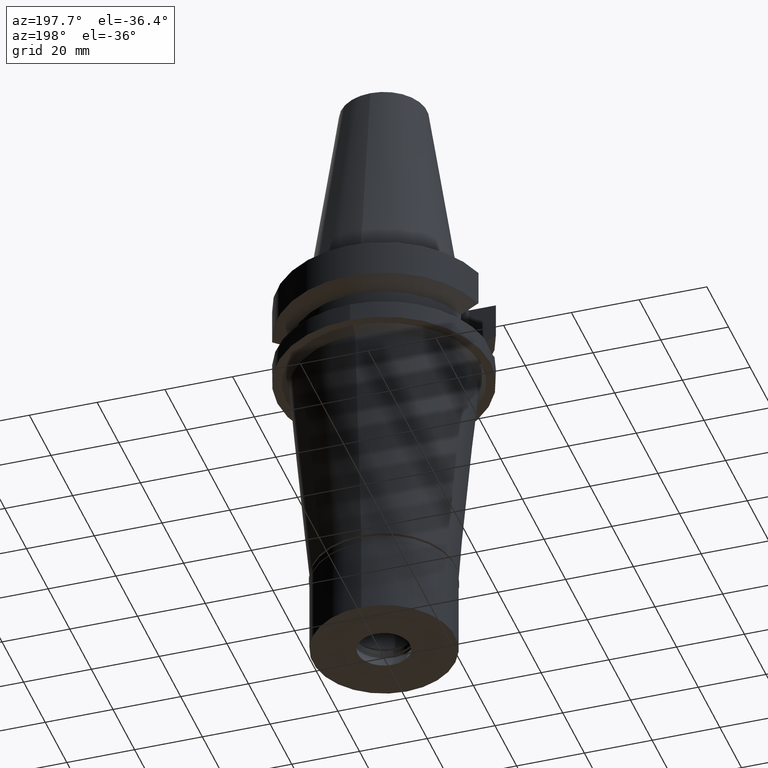
[diagram: clean part render]
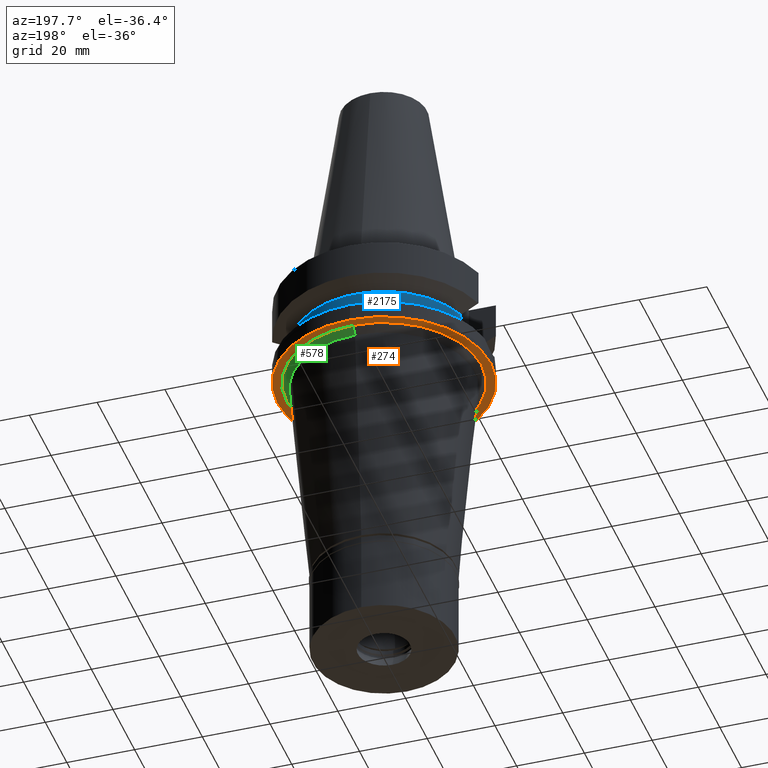
[diagram: same view with three faces highlighted in distinct colors, each labeled with its STEP entity id]
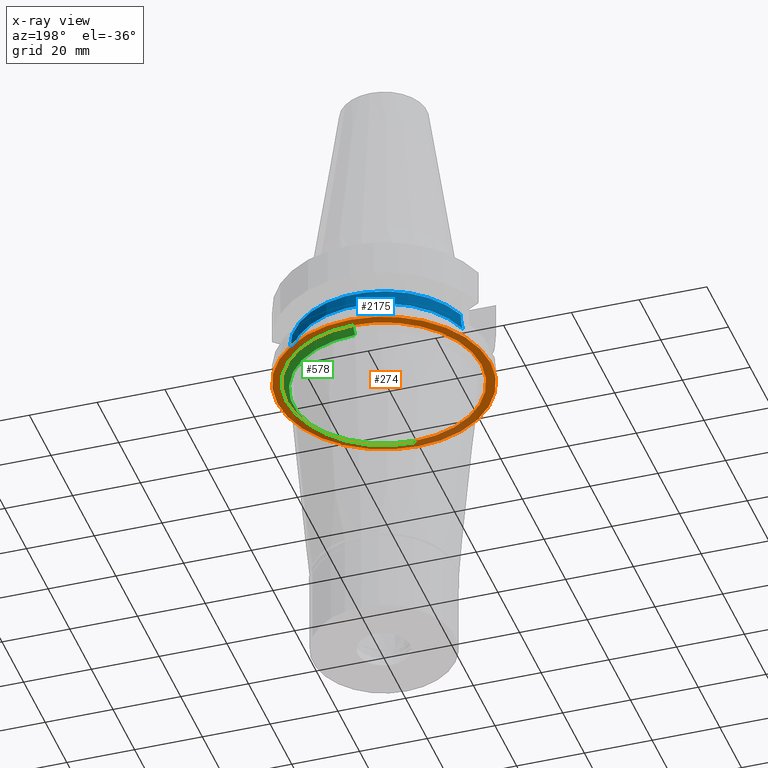
[diagram: x-ray of the same camera — body ghosted, the three highlighted faces saturated]
A machine part, auxiliary view with three faces highlighted in distinct colors.
The next image is the same camera in x-ray (body ghosted, the three faces saturated) — at least one of them is partly hidden behind the body in this view.
Their STEP definitions:

[orange] entity #274 — the highlighted planar face has unit normal (0, 0, -1).
#17 = CIRCLE ( 'NONE', #2186, 31.50000000000000000 ) ;
#31 = DIRECTION ( 'NONE',  ( 0.0000000000000000000, 1.000000000000000000, 0.0000000000000000000 ) ) ;
#36 = VERTEX_POINT ( 'NONE', #292 ) ;
#206 = DIRECTION ( 'NONE',  ( 0.0000000000000000000, -1.000000000000000000, 0.0000000000000000000 ) ) ;
#274 = ADVANCED_FACE ( 'NONE', ( #1879, #2535 ), #355, .T. ) ;
#292 = CARTESIAN_POINT ( 'NONE',  ( 0.0000000000000000000, 28.76550292635999995, -27.00000000000000000 ) ) ;
#307 = VERTEX_POINT ( 'NONE', #2645 ) ;
#332 = DIRECTION ( 'NONE',  ( 0.0000000000000000000, 0.0000000000000000000, 1.000000000000000000 ) ) ;
#355 = PLANE ( 'NONE',  #1384 ) ;
#357 = DIRECTION ( 'NONE',  ( 0.0000000000000000000, 0.0000000000000000000, 1.000000000000000000 ) ) ;
#463 = VERTEX_POINT ( 'NONE', #2447 ) ;
#628 = AXIS2_PLACEMENT_3D ( 'NONE', #1550, #357, #2787 ) ;
#720 = CARTESIAN_POINT ( 'NONE',  ( 0.0000000000000000000, 0.0000000000000000000, -27.00000000000000000 ) ) ;
#756 = DIRECTION ( 'NONE',  ( 0.0000000000000000000, 0.0000000000000000000, -1.000000000000000000 ) ) ;
#827 = AXIS2_PLACEMENT_3D ( 'NONE', #2198, #756, #31 ) ;
#860 = DIRECTION ( 'NONE',  ( 0.0000000000000000000, 0.0000000000000000000, -1.000000000000000000 ) ) ;
#1064 = VERTEX_POINT ( 'NONE', #1433 ) ;
#1136 = EDGE_CURVE ( 'NONE', #463, #307, #2239, .T. ) ;
#1299 = CARTESIAN_POINT ( 'NONE',  ( 0.0000000000000000000, 0.0000000000000000000, -27.00000000000000000 ) ) ;
#1384 = AXIS2_PLACEMENT_3D ( 'NONE', #1299, #860, #1581 ) ;
#1433 = CARTESIAN_POINT ( 'NONE',  ( 0.0000000000000000000, -28.76550292635999995, -27.00000000000000000 ) ) ;
#1535 = ORIENTED_EDGE ( 'NONE', *, *, #1136, .F. ) ;
#1550 = CARTESIAN_POINT ( 'NONE',  ( 0.0000000000000000000, 2.134498138573999781E-14, -27.00000000000000000 ) ) ;
#1581 = DIRECTION ( 'NONE',  ( 0.0000000000000000000, -1.000000000000000000, 0.0000000000000000000 ) ) ;
#1643 = AXIS2_PLACEMENT_3D ( 'NONE', #720, #2167, #206 ) ;
#1726 = DIRECTION ( 'NONE',  ( 0.0000000000000000000, -1.000000000000000000, 0.0000000000000000000 ) ) ;
#1879 = FACE_OUTER_BOUND ( 'NONE', #2129, .T. ) ;
#2108 = EDGE_CURVE ( 'NONE', #307, #463, #17, .T. ) ;
#2129 = EDGE_LOOP ( 'NONE', ( #1535, #2250 ) ) ;
#2167 = DIRECTION ( 'NONE',  ( 0.0000000000000000000, 0.0000000000000000000, -1.000000000000000000 ) ) ;
#2186 = AXIS2_PLACEMENT_3D ( 'NONE', #2205, #332, #1726 ) ;
#2198 = CARTESIAN_POINT ( 'NONE',  ( 0.0000000000000000000, 0.0000000000000000000, -27.00000000000000000 ) ) ;
#2202 = ORIENTED_EDGE ( 'NONE', *, *, #3072, .F. ) ;
#2205 = CARTESIAN_POINT ( 'NONE',  ( 0.0000000000000000000, 2.134498138573999781E-14, -27.00000000000000000 ) ) ;
#2239 = CIRCLE ( 'NONE', #628, 31.50000000000000000 ) ;
#2250 = ORIENTED_EDGE ( 'NONE', *, *, #2108, .F. ) ;
#2252 = CIRCLE ( 'NONE', #827, 28.76550292635999995 ) ;
#2447 = CARTESIAN_POINT ( 'NONE',  ( 0.0000000000000000000, 31.50000000000000000, -27.00000000000000000 ) ) ;
#2523 = EDGE_CURVE ( 'NONE', #1064, #36, #3012, .T. ) ;
#2535 = FACE_BOUND ( 'NONE', #2553, .T. ) ;
#2553 = EDGE_LOOP ( 'NONE', ( #2202, #3038 ) ) ;
#2645 = CARTESIAN_POINT ( 'NONE',  ( 0.0000000000000000000, -31.50000000000000000, -27.00000000000000000 ) ) ;
#2787 = DIRECTION ( 'NONE',  ( 0.0000000000000000000, 1.000000000000000000, 0.0000000000000000000 ) ) ;
#3012 = CIRCLE ( 'NONE', #1643, 28.76550292635999995 ) ;
#3038 = ORIENTED_EDGE ( 'NONE', *, *, #2523, .F. ) ;
#3072 = EDGE_CURVE ( 'NONE', #36, #1064, #2252, .T. ) ;

[blue] entity #2175 — the highlighted cylindrical surface (partial cylindrical patch) has radius 26.5 mm, axis along (0, 0, -1).
#35 = EDGE_CURVE ( 'NONE', #1943, #1637, #699, .T. ) ;
#119 = VECTOR ( 'NONE', #2001, 999.9999999999998863 ) ;
#141 = CARTESIAN_POINT ( 'NONE',  ( 25.53175183775000079, 7.097862220092999941, -18.74774300138999905 ) ) ;
#170 = CARTESIAN_POINT ( 'NONE',  ( -25.31202500689251522, 7.845732311882787968, -16.75278555880698406 ) ) ;
#279 = DIRECTION ( 'NONE',  ( -1.016055629568006087E-06, -3.186721160962021074E-06, -0.9999999999944062523 ) ) ;
#653 = CARTESIAN_POINT ( 'NONE',  ( 25.35411236305800031, 7.708864339760763684, -17.26996869602688278 ) ) ;
#667 = CARTESIAN_POINT ( 'NONE',  ( -25.53175183775000079, 7.097862220092999941, -18.74774300138999905 ) ) ;
#677 = ORIENTED_EDGE ( 'NONE', *, *, #898, .F. ) ;
#699 = CIRCLE ( 'NONE', #1588, 26.50000000000000711 ) ;
#709 = ORIENTED_EDGE ( 'NONE', *, *, #2925, .F. ) ;
#774 = CARTESIAN_POINT ( 'NONE',  ( 0.0000000000000000000, 1.065333950388000029E-14, -14.45225699861000024 ) ) ;
#810 = CARTESIAN_POINT ( 'NONE',  ( -25.28048322354058541, 7.947042364867001218, -16.24399973113296980 ) ) ;
#864 = CARTESIAN_POINT ( 'NONE',  ( 25.32418608982703390, 7.806352243999687524, -16.91565584311630488 ) ) ;
#878 = VECTOR ( 'NONE', #279, 1000.000000000000000 ) ;
#889 = CARTESIAN_POINT ( 'NONE',  ( -25.32118071774171497, 7.816100027253767735, -16.87651110713343527 ) ) ;
#890 = CARTESIAN_POINT ( 'NONE',  ( 25.44392127699064332, 7.408263445652504053, -18.11704143288375946 ) ) ;
#898 = EDGE_CURVE ( 'NONE', #2114, #1061, #1245, .T. ) ;
#907 = EDGE_CURVE ( 'NONE', #2114, #2952, #2399, .T. ) ;
#916 = AXIS2_PLACEMENT_3D ( 'NONE', #1044, #2036, #1280 ) ;
#921 = CARTESIAN_POINT ( 'NONE',  ( 25.37572268659466701, 7.637742846882907166, -17.49808964567741043 ) ) ;
#926 = VERTEX_POINT ( 'NONE', #1984 ) ;
#958 = CARTESIAN_POINT ( 'NONE',  ( 25.24772413115000091, 8.049995415974001034, -14.45229202654999945 ) ) ;
#1044 = CARTESIAN_POINT ( 'NONE',  ( 0.0000000000000000000, 2.134498138573999781E-14, 74.29500000000000171 ) ) ;
#1051 = LINE ( 'NONE', #1250, #119 ) ;
#1061 = VERTEX_POINT ( 'NONE', #2943 ) ;
#1122 = CARTESIAN_POINT ( 'NONE',  ( -25.31648570732018655, 7.831303109281309460, -16.81376729955617577 ) ) ;
#1123 = CARTESIAN_POINT ( 'NONE',  ( 25.32549585278727022, 7.802104298501142843, -16.93243209947438643 ) ) ;
#1172 = EDGE_CURVE ( 'NONE', #1061, #1637, #1051, .T. ) ;
#1245 = B_SPLINE_CURVE_WITH_KNOTS ( 'NONE', 3,
 ( #141, #1380, #890, #2095, #921, #653, #2578, #1867, #2836, #1123, #864, #1589, #1338, #3102 ),
 .UNSPECIFIED., .F., .F.,
 ( 4, 2, 2, 1, 1, 2, 2, 4 ),
 ( 0.0000000000000000000, 0.2499999999999975575, 0.3749999999999975575, 0.4374999999999975575, 0.4687499999999987788, 0.4843749999999993339, 0.4999999999999998890, 1.000000000000000000 ),
 .UNSPECIFIED. ) ;
#1250 = CARTESIAN_POINT ( 'NONE',  ( 25.24772266958000344, 8.050000000000000711, -14.94999999999999929 ) ) ;
#1280 = DIRECTION ( 'NONE',  ( 0.0000000000000000000, -1.000000000000000000, 0.0000000000000000000 ) ) ;
#1338 = CARTESIAN_POINT ( 'NONE',  ( 25.24772266957999989, 8.050000000000000711, -15.58995880478328999 ) ) ;
#1380 = CARTESIAN_POINT ( 'NONE',  ( 25.48481625423749364, 7.266694416798063827, -18.43220093598307230 ) ) ;
#1425 = AXIS2_PLACEMENT_3D ( 'NONE', #2112, #2608, #2365 ) ;
#1427 = B_SPLINE_CURVE_WITH_KNOTS ( 'NONE', 3,
 ( #2776, #2031, #2991, #1553, #810, #1781, #2301, #170, #1122, #3087, #889, #2833, #2361, #667 ),
 .UNSPECIFIED., .F., .F.,
 ( 4, 2, 2, 1, 1, 2, 2, 4 ),
 ( 0.0000000000000000000, 0.2500000000000326406, 0.3750000000000489608, 0.4375000000000558997, 0.4687500000000580647, 0.4843750000000578426, 0.5000000000000576206, 1.000000000000000000 ),
 .UNSPECIFIED. ) ;
#1461 = LINE ( 'NONE', #1739, #878 ) ;
#1494 = DIRECTION ( 'NONE',  ( -0.9527442516822307583, 0.3037735849057093818, 0.0000000000000000000 ) ) ;
#1553 = CARTESIAN_POINT ( 'NONE',  ( -25.27268309164520232, 7.971812745166494629, -16.08115051879740420 ) ) ;
#1588 = AXIS2_PLACEMENT_3D ( 'NONE', #774, #1744, #1494 ) ;
#1589 = CARTESIAN_POINT ( 'NONE',  ( 25.27269031700759783, 7.973298021050312379, -16.24529443263009654 ) ) ;
#1637 = VERTEX_POINT ( 'NONE', #958 ) ;
#1739 = CARTESIAN_POINT ( 'NONE',  ( -25.24772216383000156, 8.050001586207001125, -14.45224487859000106 ) ) ;
#1744 = DIRECTION ( 'NONE',  ( 0.0000000000000000000, 0.0000000000000000000, -1.000000000000000000 ) ) ;
#1771 = FACE_OUTER_BOUND ( 'NONE', #2288, .T. ) ;
#1781 = CARTESIAN_POINT ( 'NONE',  ( -25.29452346095227000, 7.902092865024707535, -16.48827265652634111 ) ) ;
#1867 = CARTESIAN_POINT ( 'NONE',  ( 25.33291921433979610, 7.778007550393247094, -17.02550036343772888 ) ) ;
#1943 = VERTEX_POINT ( 'NONE', #2433 ) ;
#1984 = CARTESIAN_POINT ( 'NONE',  ( -25.24772266958000344, 8.050000000000000711, -14.94999999999999929 ) ) ;
#2001 = DIRECTION ( 'NONE',  ( 2.936606992844924183E-06, -9.210271512824759089E-06, 0.9999999999532737105 ) ) ;
#2031 = CARTESIAN_POINT ( 'NONE',  ( -25.24772266957999989, 8.050000000000016698, -15.26991016303403903 ) ) ;
#2036 = DIRECTION ( 'NONE',  ( 0.0000000000000000000, 0.0000000000000000000, -1.000000000000000000 ) ) ;
#2095 = CARTESIAN_POINT ( 'NONE',  ( 25.39163972051884244, 7.584838823501475424, -17.65189279967824376 ) ) ;
#2112 = CARTESIAN_POINT ( 'NONE',  ( 0.0000000000000000000, 0.0000000000000000000, -18.74774300138999905 ) ) ;
#2114 = VERTEX_POINT ( 'NONE', #2718 ) ;
#2123 = CARTESIAN_POINT ( 'NONE',  ( -25.53175183775000079, 7.097862220092999941, -18.74774300138999905 ) ) ;
#2175 = ADVANCED_FACE ( 'NONE', ( #1771 ), #2749, .T. ) ;
#2288 = EDGE_LOOP ( 'NONE', ( #3036, #2633, #677, #3074, #709, #2856 ) ) ;
#2301 = CARTESIAN_POINT ( 'NONE',  ( -25.30212858955025723, 7.877670097774115199, -16.61040846292341655 ) ) ;
#2361 = CARTESIAN_POINT ( 'NONE',  ( -25.43786288018555197, 7.435590607957213827, -18.11653926695827721 ) ) ;
#2365 = DIRECTION ( 'NONE',  ( 0.9634623335000935818, 0.2678438573619981722, 0.0000000000000000000 ) ) ;
#2399 = CIRCLE ( 'NONE', #1425, 26.49999999999998224 ) ;
#2433 = CARTESIAN_POINT ( 'NONE',  ( -25.24772216383000156, 8.050001586207001125, -14.45224487859000106 ) ) ;
#2578 = CARTESIAN_POINT ( 'NONE',  ( 25.34387350812708206, 7.742366891136270191, -17.15655251595375219 ) ) ;
#2608 = DIRECTION ( 'NONE',  ( 0.0000000000000000000, 0.0000000000000000000, 1.000000000000000000 ) ) ;
#2633 = ORIENTED_EDGE ( 'NONE', *, *, #1172, .F. ) ;
#2718 = CARTESIAN_POINT ( 'NONE',  ( 25.53175183775000079, 7.097862220092999941, -18.74774300138999905 ) ) ;
#2749 = CYLINDRICAL_SURFACE ( 'NONE', #916, 26.50000000000000000 ) ;
#2776 = CARTESIAN_POINT ( 'NONE',  ( -25.24772266958000344, 8.050000000000000711, -14.94999999999999929 ) ) ;
#2803 = EDGE_CURVE ( 'NONE', #1943, #926, #1461, .T. ) ;
#2833 = CARTESIAN_POINT ( 'NONE',  ( -25.36814691286075529, 7.663833599064830970, -17.48802854141449359 ) ) ;
#2836 = CARTESIAN_POINT ( 'NONE',  ( 25.32843688206640920, 7.792560665373999385, -16.96962045696275467 ) ) ;
#2856 = ORIENTED_EDGE ( 'NONE', *, *, #2803, .F. ) ;
#2925 = EDGE_CURVE ( 'NONE', #926, #2952, #1427, .T. ) ;
#2943 = CARTESIAN_POINT ( 'NONE',  ( 25.24772266958000344, 8.050000000000000711, -14.94999999999999929 ) ) ;
#2952 = VERTEX_POINT ( 'NONE', #2123 ) ;
#2991 = CARTESIAN_POINT ( 'NONE',  ( -25.25396277509630139, 8.030907860997638537, -15.59359823559724312 ) ) ;
#3036 = ORIENTED_EDGE ( 'NONE', *, *, #35, .T. ) ;
#3074 = ORIENTED_EDGE ( 'NONE', *, *, #907, .T. ) ;
#3087 = CARTESIAN_POINT ( 'NONE',  ( -25.31950825842965358, 7.821518470898141118, -16.85441217852998008 ) ) ;
#3102 = CARTESIAN_POINT ( 'NONE',  ( 25.24772266958000344, 8.050000000000000711, -14.94999999999999929 ) ) ;

[green] entity #578 — the highlighted conical surface has half-angle 45 deg.
#16 = DIRECTION ( 'NONE',  ( 0.0000000000000000000, -0.7071067811865969777, -0.7071067811864980568 ) ) ;
#31 = DIRECTION ( 'NONE',  ( 0.0000000000000000000, 1.000000000000000000, 0.0000000000000000000 ) ) ;
#32 = VECTOR ( 'NONE', #1101, 1000.000000000000000 ) ;
#36 = VERTEX_POINT ( 'NONE', #292 ) ;
#67 = CIRCLE ( 'NONE', #2099, 26.76550292636000350 ) ;
#76 = DIRECTION ( 'NONE',  ( 0.0000000000000000000, 0.0000000000000000000, 1.000000000000000000 ) ) ;
#150 = CARTESIAN_POINT ( 'NONE',  ( 0.0000000000000000000, -28.76550292635999995, -27.00000000000000000 ) ) ;
#168 = DIRECTION ( 'NONE',  ( 0.0000000000000000000, -1.000000000000000000, 0.0000000000000000000 ) ) ;
#272 = VECTOR ( 'NONE', #16, 1000.000000000000000 ) ;
#276 = EDGE_CURVE ( 'NONE', #1064, #2371, #2329, .T. ) ;
#292 = CARTESIAN_POINT ( 'NONE',  ( 0.0000000000000000000, 28.76550292635999995, -27.00000000000000000 ) ) ;
#320 = ORIENTED_EDGE ( 'NONE', *, *, #276, .T. ) ;
#478 = LINE ( 'NONE', #2885, #272 ) ;
#578 = ADVANCED_FACE ( 'NONE', ( #809 ), #2450, .T. ) ;
#584 = EDGE_LOOP ( 'NONE', ( #1249, #320, #1595, #1704 ) ) ;
#598 = DIRECTION ( 'NONE',  ( 0.0000000000000000000, 1.000000000000000000, 0.0000000000000000000 ) ) ;
#756 = DIRECTION ( 'NONE',  ( 0.0000000000000000000, 0.0000000000000000000, -1.000000000000000000 ) ) ;
#809 = FACE_OUTER_BOUND ( 'NONE', #584, .T. ) ;
#827 = AXIS2_PLACEMENT_3D ( 'NONE', #2198, #756, #31 ) ;
#1064 = VERTEX_POINT ( 'NONE', #1433 ) ;
#1101 = DIRECTION ( 'NONE',  ( 0.0000000000000000000, 0.7071067811865969777, -0.7071067811864980568 ) ) ;
#1104 = CARTESIAN_POINT ( 'NONE',  ( 0.0000000000000000000, 0.0000000000000000000, -29.00000000000000000 ) ) ;
#1120 = DIRECTION ( 'NONE',  ( 0.0000000000000000000, 0.0000000000000000000, 1.000000000000000000 ) ) ;
#1249 = ORIENTED_EDGE ( 'NONE', *, *, #3072, .T. ) ;
#1412 = EDGE_CURVE ( 'NONE', #2371, #1990, #67, .T. ) ;
#1433 = CARTESIAN_POINT ( 'NONE',  ( 0.0000000000000000000, -28.76550292635999995, -27.00000000000000000 ) ) ;
#1595 = ORIENTED_EDGE ( 'NONE', *, *, #1412, .T. ) ;
#1704 = ORIENTED_EDGE ( 'NONE', *, *, #2537, .F. ) ;
#1830 = AXIS2_PLACEMENT_3D ( 'NONE', #2243, #76, #598 ) ;
#1990 = VERTEX_POINT ( 'NONE', #2162 ) ;
#2099 = AXIS2_PLACEMENT_3D ( 'NONE', #1104, #1120, #168 ) ;
#2162 = CARTESIAN_POINT ( 'NONE',  ( 0.0000000000000000000, 26.76550292636000350, -29.00000000000000000 ) ) ;
#2198 = CARTESIAN_POINT ( 'NONE',  ( 0.0000000000000000000, 0.0000000000000000000, -27.00000000000000000 ) ) ;
#2243 = CARTESIAN_POINT ( 'NONE',  ( 0.0000000000000000000, 0.0000000000000000000, -28.00000000000000000 ) ) ;
#2252 = CIRCLE ( 'NONE', #827, 28.76550292635999995 ) ;
#2329 = LINE ( 'NONE', #150, #32 ) ;
#2371 = VERTEX_POINT ( 'NONE', #2564 ) ;
#2450 = CONICAL_SURFACE ( 'NONE', #1830, 27.76550292635999995, 0.7853981633972997312 ) ;
#2537 = EDGE_CURVE ( 'NONE', #36, #1990, #478, .T. ) ;
#2564 = CARTESIAN_POINT ( 'NONE',  ( 0.0000000000000000000, -26.76550292636000350, -29.00000000000000000 ) ) ;
#2885 = CARTESIAN_POINT ( 'NONE',  ( 0.0000000000000000000, 28.76550292635999995, -27.00000000000000000 ) ) ;
#3072 = EDGE_CURVE ( 'NONE', #36, #1064, #2252, .T. ) ;